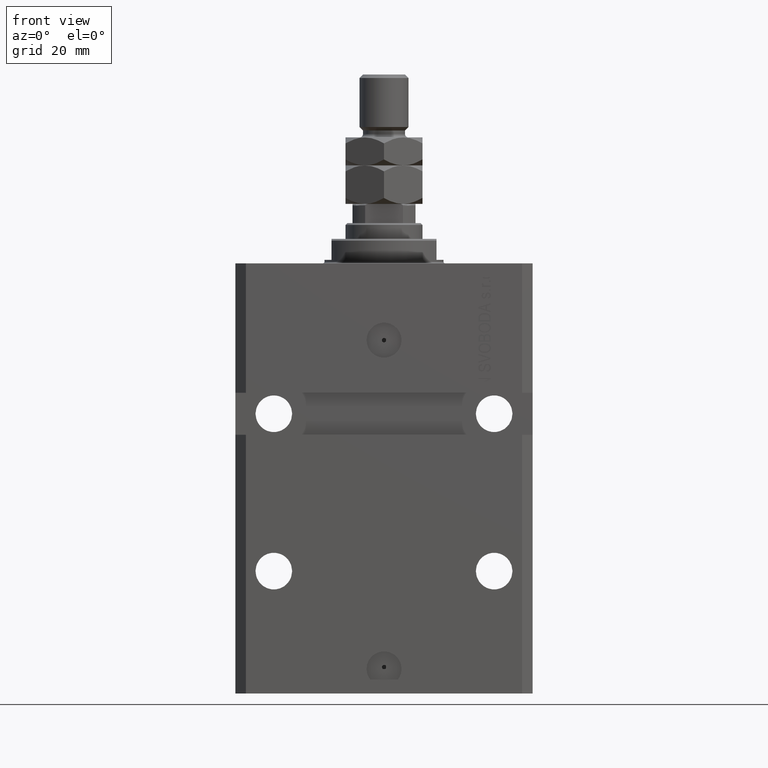
[diagram: clean part render]
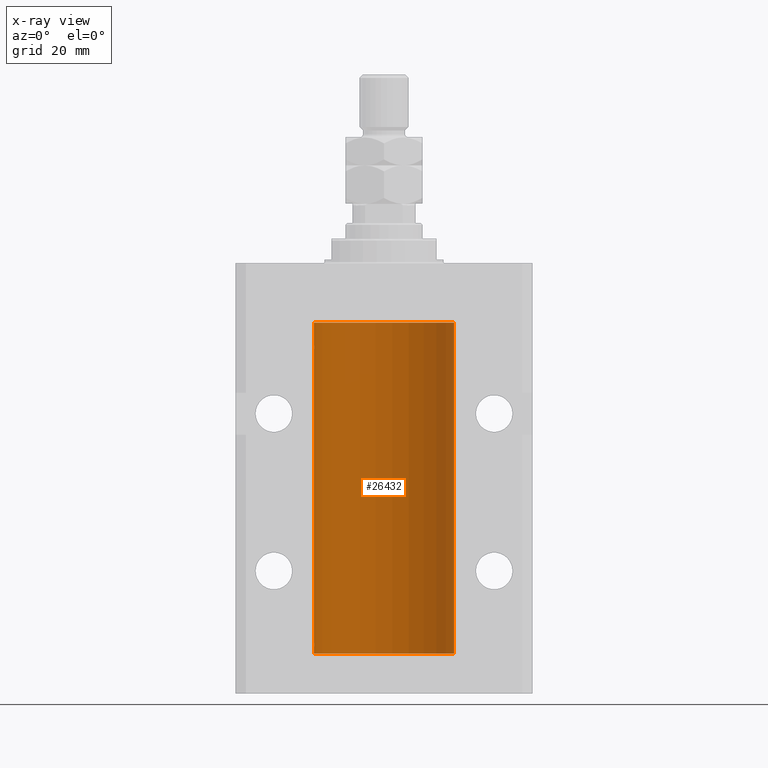
[diagram: x-ray — body ghosted, one internal face saturated and labeled with its STEP entity id]
A machine part, front view, then the same camera in x-ray: the body is ghosted and one INTERNAL B-rep face — a face not visible from any outside direction — is saturated and labeled: STEP entity #26432.
In plain terms, the highlighted cylindrical surface (partial cylindrical patch) has radius 20 mm, axis along (0, 0, 1).
Its self-contained STEP definition (entity closure, byte-faithful):
#78 = VECTOR ( 'NONE', #4232, 1000.000000000000000 ) ;
#493 = ORIENTED_EDGE ( 'NONE', *, *, #42683, .T. ) ;
#1307 = DIRECTION ( 'NONE',  ( 1.000000000000000000, 0.000000000000000000, 0.000000000000000000 ) ) ;
#2083 = ORIENTED_EDGE ( 'NONE', *, *, #38030, .T. ) ;
#3090 = EDGE_CURVE ( 'NONE', #42870, #21336, #15305, .T. ) ;
#3146 = CARTESIAN_POINT ( 'NONE',  ( -19.99253506710754991, 0.5587120480776772702, -109.3251162083024894 ) ) ;
#3317 = CARTESIAN_POINT ( 'NONE',  ( -20.00000000000010303, 3.580159278407742946E-13, -24.62500000000332889 ) ) ;
#4196 = CARTESIAN_POINT ( 'NONE',  ( -19.99638934703457593, 0.3843678041337688644, -23.50046362978100944 ) ) ;
#4232 = DIRECTION ( 'NONE',  ( -0.000000000000000000, -0.000000000000000000, 1.000000000000000000 ) ) ;
#6458 = CARTESIAN_POINT ( 'NONE',  ( -20.00000000000000000, 2.449293598294706513E-15, -111.5999999999999943 ) ) ;
#6912 = CARTESIAN_POINT ( 'NONE',  ( -19.99638934703457593, 0.3843678041337614260, -108.5004636297810094 ) ) ;
#7373 = FACE_OUTER_BOUND ( 'NONE', #27385, .T. ) ;
#7457 = CARTESIAN_POINT ( 'NONE',  ( -19.99947377218718714, 0.1636439183262877461, -23.39126364004656011 ) ) ;
#7711 = CARTESIAN_POINT ( 'NONE',  ( -19.99023380173166231, 0.6249420416828462832, -23.83670793056396064 ) ) ;
#7958 = CARTESIAN_POINT ( 'NONE',  ( -19.99766197842594906, 0.3150331617867667688, -23.45402070102505476 ) ) ;
#9157 = LINE ( 'NONE', #16952, #10319 ) ;
#9825 = DIRECTION ( 'NONE',  ( -0.000000000000000000, -0.000000000000000000, 1.000000000000000000 ) ) ;
#10319 = VECTOR ( 'NONE', #22132, 1000.000000000000000 ) ;
#10849 = VERTEX_POINT ( 'NONE', #43755 ) ;
#10955 = CARTESIAN_POINT ( 'NONE',  ( -20.00000000000010303, 3.580159290815452135E-13, -109.6250000000033253 ) ) ;
#11367 = VECTOR ( 'NONE', #28470, 1000.000000000000000 ) ;
#11973 = CARTESIAN_POINT ( 'NONE',  ( 0.000000000000000000, 0.000000000000000000, -111.5999999999999943 ) ) ;
#12212 = VERTEX_POINT ( 'NONE', #6458 ) ;
#12535 = CARTESIAN_POINT ( 'NONE',  ( -20.00000000000000000, 2.449293598294706513E-15, -111.5999999999999943 ) ) ;
#13019 = ORIENTED_EDGE ( 'NONE', *, *, #35918, .T. ) ;
#13163 = LINE ( 'NONE', #47048, #11367 ) ;
#15305 = LINE ( 'NONE', #12535, #78 ) ;
#16096 = B_SPLINE_CURVE_WITH_KNOTS ( 'NONE', 3,
 ( #18785, #30821, #7457, #7958, #4196, #37850, #7711, #41855, #22792, #34087, #38341, #26568 ),
 .UNSPECIFIED., .F., .F.,
 ( 4, 2, 2, 2, 2, 4 ),
 ( 5.848927291235706941E-19, 0.0002442693137305304075, 0.0004885386274610601645, 0.0009770772549221123059, 0.001465615882383164339, 0.001954154509844215938 ),
 .UNSPECIFIED. ) ;
#16952 = CARTESIAN_POINT ( 'NONE',  ( -20.00000000000000000, 2.449293598294706513E-15, -111.5999999999999943 ) ) ;
#18785 = CARTESIAN_POINT ( 'NONE',  ( -20.00000000000000000, -2.867584836844214272E-15, -23.37500000000000000 ) ) ;
#19415 = CARTESIAN_POINT ( 'NONE',  ( 20.00000000000000000, 0.000000000000000000, -17.00000000000000000 ) ) ;
#20006 = VECTOR ( 'NONE', #9825, 1000.000000000000000 ) ;
#21336 = VERTEX_POINT ( 'NONE', #25547 ) ;
#21829 = DIRECTION ( 'NONE',  ( 0.000000000000000000, 0.000000000000000000, 1.000000000000000000 ) ) ;
#22132 = DIRECTION ( 'NONE',  ( -0.000000000000000000, -0.000000000000000000, 1.000000000000000000 ) ) ;
#22244 = CARTESIAN_POINT ( 'NONE',  ( -19.99256581701871838, 0.5573276956901952461, -108.6734856577094916 ) ) ;
#22792 = CARTESIAN_POINT ( 'NONE',  ( -19.99253506710754991, 0.5587120480776751608, -24.32511620830248589 ) ) ;
#22909 = ORIENTED_EDGE ( 'NONE', *, *, #47772, .T. ) ;
#23252 = ORIENTED_EDGE ( 'NONE', *, *, #41879, .F. ) ;
#23761 = DIRECTION ( 'NONE',  ( 1.000000000000000000, 0.000000000000000000, 0.000000000000000000 ) ) ;
#25146 = CARTESIAN_POINT ( 'NONE',  ( 20.00000000000000000, 0.000000000000000000, -111.5999999999999943 ) ) ;
#25547 = CARTESIAN_POINT ( 'NONE',  ( -20.00000000000000000, 2.449293598294706513E-15, -17.00000000000000000 ) ) ;
#25828 = ORIENTED_EDGE ( 'NONE', *, *, #45563, .F. ) ;
#26024 = CARTESIAN_POINT ( 'NONE',  ( -19.99766197842594906, 0.3150331617867563327, -108.4540207010250299 ) ) ;
#26269 = CARTESIAN_POINT ( 'NONE',  ( -19.99023018003212471, 0.6250578794725484277, -109.1628480970496895 ) ) ;
#26432 = ADVANCED_FACE ( 'NONE', ( #7373 ), #39004, .F. ) ;
#26568 = CARTESIAN_POINT ( 'NONE',  ( -20.00000000000010303, 3.580159278407742946E-13, -24.62500000000332889 ) ) ;
#27385 = EDGE_LOOP ( 'NONE', ( #23252, #25828, #2083, #22909, #36739, #493, #39396, #13019 ) ) ;
#28112 = B_SPLINE_CURVE_WITH_KNOTS ( 'NONE', 3,
 ( #33540, #48853, #45082, #26024, #6912, #22244, #37556, #26269, #3146, #49108, #45336, #10955 ),
 .UNSPECIFIED., .F., .F.,
 ( 4, 2, 2, 2, 2, 4 ),
 ( 1.555867690894744095E-18, 0.0002442693137305176681, 0.0004885386274610337099, 0.0009770772549220949586, 0.001465615882383156099, 0.001954154509844217673 ),
 .UNSPECIFIED. ) ;
#28470 = DIRECTION ( 'NONE',  ( -0.000000000000000000, -0.000000000000000000, 1.000000000000000000 ) ) ;
#29759 = VERTEX_POINT ( 'NONE', #32312 ) ;
#30821 = CARTESIAN_POINT ( 'NONE',  ( -19.99999999999999645, 0.08259581631026780002, -23.37500000000000000 ) ) ;
#31953 = DIRECTION ( 'NONE',  ( -0.000000000000000000, -0.000000000000000000, 1.000000000000000000 ) ) ;
#32312 = CARTESIAN_POINT ( 'NONE',  ( -20.00000000000000000, -1.494965790691426527E-14, -108.3750000000000000 ) ) ;
#32543 = CARTESIAN_POINT ( 'NONE',  ( -20.00000000000000000, -2.867584836844214272E-15, -23.37500000000000000 ) ) ;
#33540 = CARTESIAN_POINT ( 'NONE',  ( -20.00000000000000000, -1.494965790691426527E-14, -108.3750000000000000 ) ) ;
#33581 = CIRCLE ( 'NONE', #47200, 20.00000000000000000 ) ;
#34087 = CARTESIAN_POINT ( 'NONE',  ( -19.99769349528941120, 0.3253804398728645242, -24.55855820727680339 ) ) ;
#34405 = VERTEX_POINT ( 'NONE', #19415 ) ;
#35723 = CARTESIAN_POINT ( 'NONE',  ( 0.000000000000000000, 0.000000000000000000, -111.5999999999999943 ) ) ;
#35918 = EDGE_CURVE ( 'NONE', #29759, #10849, #28112, .T. ) ;
#36037 = EDGE_CURVE ( 'NONE', #29759, #37828, #9157, .T. ) ;
#36739 = ORIENTED_EDGE ( 'NONE', *, *, #3090, .F. ) ;
#37556 = CARTESIAN_POINT ( 'NONE',  ( -19.99023380173165876, 0.6249420416828411762, -108.8367079305639322 ) ) ;
#37746 = VERTEX_POINT ( 'NONE', #44510 ) ;
#37828 = VERTEX_POINT ( 'NONE', #3317 ) ;
#37850 = CARTESIAN_POINT ( 'NONE',  ( -19.99256581701871482, 0.5573276956902001311, -23.67348565770948809 ) ) ;
#38030 = EDGE_CURVE ( 'NONE', #37746, #34405, #48216, .T. ) ;
#38341 = CARTESIAN_POINT ( 'NONE',  ( -20.00000000000000000, 0.1631688615953320320, -24.62499999999985434 ) ) ;
#38812 = DIRECTION ( 'NONE',  ( 0.000000000000000000, 0.000000000000000000, 1.000000000000000000 ) ) ;
#39004 = CYLINDRICAL_SURFACE ( 'NONE', #46990, 20.00000000000000000 ) ;
#39396 = ORIENTED_EDGE ( 'NONE', *, *, #36037, .F. ) ;
#40879 = DIRECTION ( 'NONE',  ( 1.000000000000000000, 0.000000000000000000, 0.000000000000000000 ) ) ;
#41855 = CARTESIAN_POINT ( 'NONE',  ( -19.99023018003212471, 0.6250578794725500931, -24.16284809704970371 ) ) ;
#41879 = EDGE_CURVE ( 'NONE', #12212, #10849, #13163, .T. ) ;
#42683 = EDGE_CURVE ( 'NONE', #42870, #37828, #16096, .T. ) ;
#42870 = VERTEX_POINT ( 'NONE', #32543 ) ;
#43755 = CARTESIAN_POINT ( 'NONE',  ( -20.00000000000010303, 3.580159290815452135E-13, -109.6250000000033253 ) ) ;
#44071 = CIRCLE ( 'NONE', #47272, 20.00000000000000000 ) ;
#44510 = CARTESIAN_POINT ( 'NONE',  ( 20.00000000000000000, 0.000000000000000000, -111.5999999999999943 ) ) ;
#45082 = CARTESIAN_POINT ( 'NONE',  ( -19.99947377218718358, 0.1636439183262759223, -108.3912636400465459 ) ) ;
#45336 = CARTESIAN_POINT ( 'NONE',  ( -20.00000000000000355, 0.1631688615953337806, -109.6249999999998721 ) ) ;
#45410 = CARTESIAN_POINT ( 'NONE',  ( 0.000000000000000000, 0.000000000000000000, -17.00000000000000000 ) ) ;
#45563 = EDGE_CURVE ( 'NONE', #37746, #12212, #33581, .T. ) ;
#46990 = AXIS2_PLACEMENT_3D ( 'NONE', #35723, #31953, #1307 ) ;
#47048 = CARTESIAN_POINT ( 'NONE',  ( -20.00000000000000000, 2.449293598294706513E-15, -111.5999999999999943 ) ) ;
#47200 = AXIS2_PLACEMENT_3D ( 'NONE', #11973, #38812, #23761 ) ;
#47272 = AXIS2_PLACEMENT_3D ( 'NONE', #45410, #21829, #40879 ) ;
#47772 = EDGE_CURVE ( 'NONE', #34405, #21336, #44071, .T. ) ;
#48216 = LINE ( 'NONE', #25146, #20006 ) ;
#48853 = CARTESIAN_POINT ( 'NONE',  ( -19.99999999999999289, 0.08259581631025748882, -108.3749999999999716 ) ) ;
#49108 = CARTESIAN_POINT ( 'NONE',  ( -19.99769349528941476, 0.3253804398728720182, -109.5585582072768318 ) ) ;